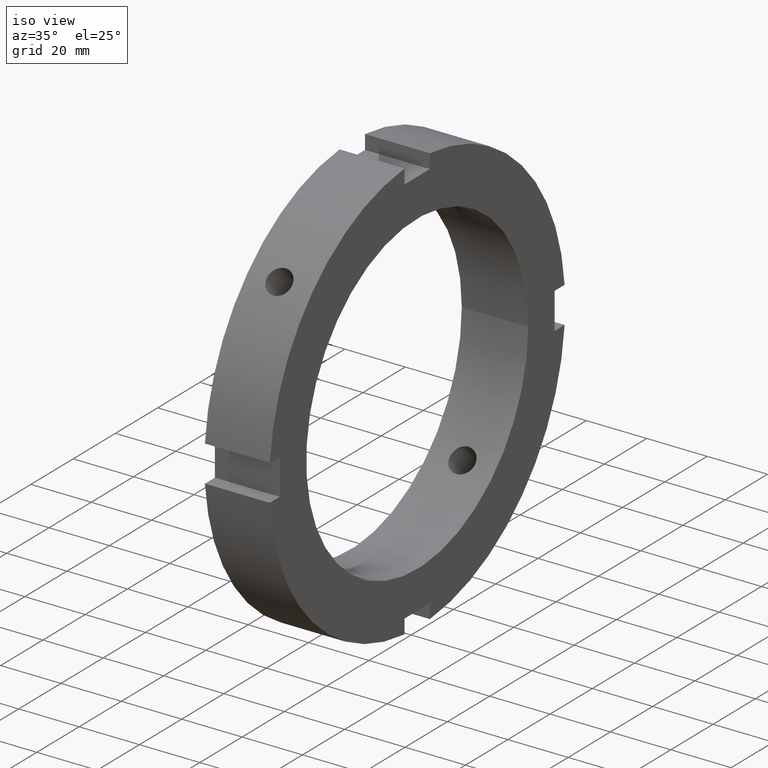
[diagram: clean part render]
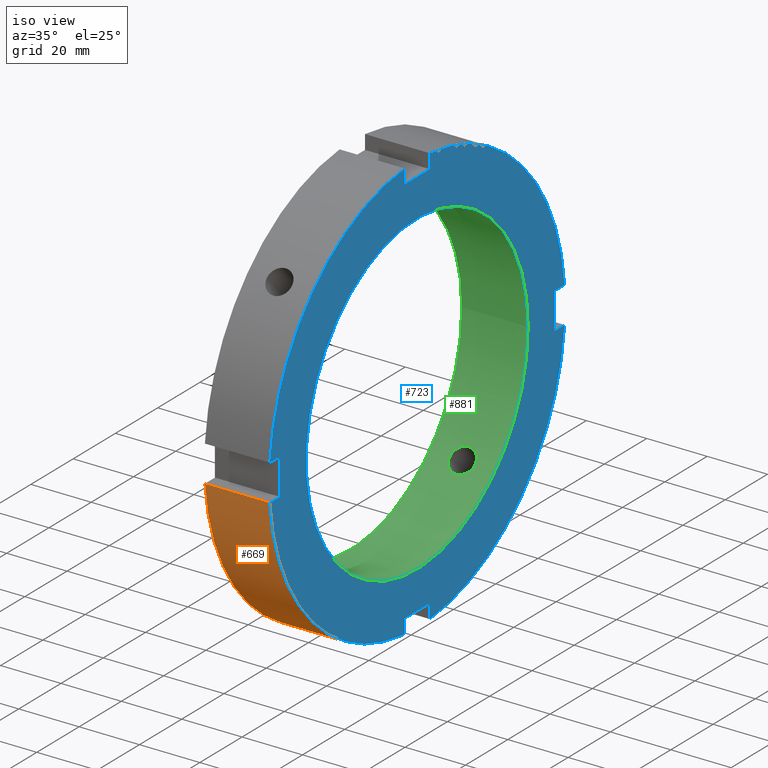
[diagram: same view with three faces highlighted in distinct colors, each labeled with its STEP entity id]
A machine part, iso view with three faces highlighted in distinct colors.
Their STEP definitions:

[orange] entity #669 — the highlighted cylindrical surface (partial cylindrical patch) has radius 70 mm, axis along (1, 0, 0).
#251=CARTESIAN_POINT('',(0.499999999999980,-6.000000000000012,-69.742383096650769));
#252=VERTEX_POINT('',#251);
#267=CARTESIAN_POINT('',(21.999999999999989,-6.000000000000012,-69.742383096650769));
#268=VERTEX_POINT('',#267);
#275=CARTESIAN_POINT('',(0.499999999999980,-6.000000000000011,-69.742383096650769));
#276=DIRECTION('',(1.0,0.0,0.0));
#277=VECTOR('',#276,21.500000000000007);
#278=LINE('',#275,#277);
#279=EDGE_CURVE('',#252,#268,#278,.T.);
#391=CARTESIAN_POINT('',(0.499999999999980,-69.742383096650769,-5.999999999999989));
#392=VERTEX_POINT('',#391);
#401=CARTESIAN_POINT('',(21.999999999999989,-69.742383096650769,-5.999999999999989));
#402=VERTEX_POINT('',#401);
#403=CARTESIAN_POINT('',(21.999999999999989,-69.742383096650769,-5.999999999999989));
#404=DIRECTION('',(-1.0,0.0,0.0));
#405=VECTOR('',#404,21.500000000000007);
#406=LINE('',#403,#405);
#407=EDGE_CURVE('',#402,#392,#406,.T.);
#646=CARTESIAN_POINT('',(11.249999999999982,0.0,0.0));
#647=DIRECTION('',(1.0,0.0,0.0));
#648=DIRECTION('',(0.0,1.0,0.0));
#649=AXIS2_PLACEMENT_3D('',#646,#647,#648);
#650=CYLINDRICAL_SURFACE('',#649,70.0);
#651=ORIENTED_EDGE('',*,*,#279,.T.);
#652=CARTESIAN_POINT('',(21.999999999999986,0.0,0.0));
#653=DIRECTION('',(1.0,0.0,0.0));
#654=DIRECTION('',(0.0,1.0,0.0));
#655=AXIS2_PLACEMENT_3D('',#652,#653,#654);
#656=CIRCLE('',#655,70.0);
#657=EDGE_CURVE('',#402,#268,#656,.T.);
#658=ORIENTED_EDGE('',*,*,#657,.F.);
#659=ORIENTED_EDGE('',*,*,#407,.T.);
#660=CARTESIAN_POINT('',(0.499999999999980,0.0,0.0));
#661=DIRECTION('',(1.0,0.0,0.0));
#662=DIRECTION('',(0.0,1.0,0.0));
#663=AXIS2_PLACEMENT_3D('',#660,#661,#662);
#664=CIRCLE('',#663,70.0);
#665=EDGE_CURVE('',#392,#252,#664,.T.);
#666=ORIENTED_EDGE('',*,*,#665,.T.);
#667=EDGE_LOOP('',(#651,#658,#659,#666));
#668=FACE_OUTER_BOUND('',#667,.T.);
#669=ADVANCED_FACE('',(#668),#650,.T.);

[blue] entity #723 — the highlighted planar face has unit normal (1, 0, 0).
#259=CARTESIAN_POINT('',(21.999999999999989,-6.000000000000010,-65.0));
#260=VERTEX_POINT('',#259);
#267=CARTESIAN_POINT('',(21.999999999999989,-6.000000000000012,-69.742383096650769));
#268=VERTEX_POINT('',#267);
#269=CARTESIAN_POINT('',(21.999999999999989,-6.000000000000016,-69.742383096650769));
#270=DIRECTION('',(0.0,0.0,1.0));
#271=VECTOR('',#270,4.742383096650769);
#272=LINE('',#269,#271);
#273=EDGE_CURVE('',#268,#260,#272,.T.);
#299=CARTESIAN_POINT('',(21.999999999999989,5.999999999999986,-69.742383096650769));
#300=VERTEX_POINT('',#299);
#307=CARTESIAN_POINT('',(21.999999999999989,5.999999999999986,-65.0));
#308=VERTEX_POINT('',#307);
#309=CARTESIAN_POINT('',(21.999999999999989,5.999999999999989,-65.0));
#310=DIRECTION('',(0.0,0.0,-1.0));
#311=VECTOR('',#310,4.742383096650769);
#312=LINE('',#309,#311);
#313=EDGE_CURVE('',#308,#300,#312,.T.);
#336=CARTESIAN_POINT('',(21.999999999999989,-6.000000000000014,-64.999999999999986));
#337=DIRECTION('',(0.0,1.0,0.0));
#338=VECTOR('',#337,12.0);
#339=LINE('',#336,#338);
#340=EDGE_CURVE('',#260,#308,#339,.T.);
#361=CARTESIAN_POINT('',(21.999999999999989,-65.0,6.000000000000006));
#362=VERTEX_POINT('',#361);
#369=CARTESIAN_POINT('',(21.999999999999989,-69.742383096650769,6.000000000000007));
#370=VERTEX_POINT('',#369);
#371=CARTESIAN_POINT('',(21.999999999999989,-69.742383096650769,6.000000000000009));
#372=DIRECTION('',(0.0,1.0,0.0));
#373=VECTOR('',#372,4.742383096650769);
#374=LINE('',#371,#373);
#375=EDGE_CURVE('',#370,#362,#374,.T.);
#401=CARTESIAN_POINT('',(21.999999999999989,-69.742383096650769,-5.999999999999989));
#402=VERTEX_POINT('',#401);
#409=CARTESIAN_POINT('',(21.999999999999989,-65.0,-5.999999999999989));
#410=VERTEX_POINT('',#409);
#411=CARTESIAN_POINT('',(21.999999999999989,-65.0,-5.999999999999989));
#412=DIRECTION('',(0.0,-1.0,0.0));
#413=VECTOR('',#412,4.742383096650769);
#414=LINE('',#411,#413);
#415=EDGE_CURVE('',#410,#402,#414,.T.);
#438=CARTESIAN_POINT('',(21.999999999999989,-65.0,6.000000000000006));
#439=DIRECTION('',(0.0,0.0,-1.0));
#440=VECTOR('',#439,11.999999999999996);
#441=LINE('',#438,#440);
#442=EDGE_CURVE('',#362,#410,#441,.T.);
#463=CARTESIAN_POINT('',(21.999999999999989,6.000000000000002,65.0));
#464=VERTEX_POINT('',#463);
#471=CARTESIAN_POINT('',(21.999999999999989,6.000000000000004,69.742383096650769));
#472=VERTEX_POINT('',#471);
#473=CARTESIAN_POINT('',(21.999999999999989,6.000000000000007,69.742383096650769));
#474=DIRECTION('',(0.0,0.0,-1.0));
#475=VECTOR('',#474,4.742383096650769);
#476=LINE('',#473,#475);
#477=EDGE_CURVE('',#472,#464,#476,.T.);
#503=CARTESIAN_POINT('',(21.999999999999989,-5.999999999999995,69.742383096650769));
#504=VERTEX_POINT('',#503);
#511=CARTESIAN_POINT('',(21.999999999999989,-5.999999999999993,65.0));
#512=VERTEX_POINT('',#511);
#513=CARTESIAN_POINT('',(21.999999999999989,-5.999999999999996,65.0));
#514=DIRECTION('',(0.0,0.0,1.0));
#515=VECTOR('',#514,4.742383096650769);
#516=LINE('',#513,#515);
#517=EDGE_CURVE('',#512,#504,#516,.T.);
#540=CARTESIAN_POINT('',(21.999999999999989,6.0,65.0));
#541=DIRECTION('',(0.0,-1.0,0.0));
#542=VECTOR('',#541,11.999999999999993);
#543=LINE('',#540,#542);
#544=EDGE_CURVE('',#464,#512,#543,.T.);
#556=CARTESIAN_POINT('',(21.999999999999989,69.742383096650769,5.999999999999998));
#557=VERTEX_POINT('',#556);
#558=CARTESIAN_POINT('',(21.999999999999986,0.0,0.0));
#559=DIRECTION('',(1.0,0.0,0.0));
#560=DIRECTION('',(0.0,1.0,0.0));
#561=AXIS2_PLACEMENT_3D('',#558,#559,#560);
#562=CIRCLE('',#561,70.0);
#563=EDGE_CURVE('',#557,#472,#562,.T.);
#589=CARTESIAN_POINT('',(21.999999999999986,0.0,0.0));
#590=DIRECTION('',(1.0,0.0,0.0));
#591=DIRECTION('',(0.0,1.0,0.0));
#592=AXIS2_PLACEMENT_3D('',#589,#590,#591);
#593=CIRCLE('',#592,70.0);
#594=EDGE_CURVE('',#504,#370,#593,.T.);
#625=CARTESIAN_POINT('',(21.999999999999989,69.742383096650769,-5.999999999999998));
#626=VERTEX_POINT('',#625);
#633=CARTESIAN_POINT('',(21.999999999999986,0.0,0.0));
#634=DIRECTION('',(1.0,0.0,0.0));
#635=DIRECTION('',(0.0,1.0,0.0));
#636=AXIS2_PLACEMENT_3D('',#633,#634,#635);
#637=CIRCLE('',#636,70.0);
#638=EDGE_CURVE('',#300,#626,#637,.T.);
#652=CARTESIAN_POINT('',(21.999999999999986,0.0,0.0));
#653=DIRECTION('',(1.0,0.0,0.0));
#654=DIRECTION('',(0.0,1.0,0.0));
#655=AXIS2_PLACEMENT_3D('',#652,#653,#654);
#656=CIRCLE('',#655,70.0);
#657=EDGE_CURVE('',#402,#268,#656,.T.);
#670=CARTESIAN_POINT('',(21.999999999999989,61.250000000000000,0.0));
#671=DIRECTION('',(1.0,0.0,0.0));
#672=DIRECTION('',(0.0,0.0,-1.0));
#673=AXIS2_PLACEMENT_3D('',#670,#671,#672);
#674=PLANE('',#673);
#675=ORIENTED_EDGE('',*,*,#273,.T.);
#676=ORIENTED_EDGE('',*,*,#340,.T.);
#677=ORIENTED_EDGE('',*,*,#313,.T.);
#678=ORIENTED_EDGE('',*,*,#638,.T.);
#679=CARTESIAN_POINT('',(21.999999999999989,65.0,-5.999999999999997));
#680=VERTEX_POINT('',#679);
#681=CARTESIAN_POINT('',(21.999999999999989,69.742383096650769,-5.999999999999998));
#682=DIRECTION('',(0.0,-1.0,0.0));
#683=VECTOR('',#682,4.742383096650769);
#684=LINE('',#681,#683);
#685=EDGE_CURVE('',#626,#680,#684,.T.);
#686=ORIENTED_EDGE('',*,*,#685,.T.);
#687=CARTESIAN_POINT('',(21.999999999999989,65.0,5.999999999999997));
#688=VERTEX_POINT('',#687);
#689=CARTESIAN_POINT('',(21.999999999999989,65.0,-5.999999999999998));
#690=DIRECTION('',(0.0,0.0,1.0));
#691=VECTOR('',#690,11.999999999999996);
#692=LINE('',#689,#691);
#693=EDGE_CURVE('',#680,#688,#692,.T.);
#694=ORIENTED_EDGE('',*,*,#693,.T.);
#695=CARTESIAN_POINT('',(21.999999999999989,65.0,5.999999999999997));
#696=DIRECTION('',(0.0,1.0,0.0));
#697=VECTOR('',#696,4.742383096650769);
#698=LINE('',#695,#697);
#699=EDGE_CURVE('',#688,#557,#698,.T.);
#700=ORIENTED_EDGE('',*,*,#699,.T.);
#701=ORIENTED_EDGE('',*,*,#563,.T.);
#702=ORIENTED_EDGE('',*,*,#477,.T.);
#703=ORIENTED_EDGE('',*,*,#544,.T.);
#704=ORIENTED_EDGE('',*,*,#517,.T.);
#705=ORIENTED_EDGE('',*,*,#594,.T.);
#706=ORIENTED_EDGE('',*,*,#375,.T.);
#707=ORIENTED_EDGE('',*,*,#442,.T.);
#708=ORIENTED_EDGE('',*,*,#415,.T.);
#709=ORIENTED_EDGE('',*,*,#657,.T.);
#710=EDGE_LOOP('',(#675,#676,#677,#678,#686,#694,#700,#701,#702,#703,#704,#705,#706,#707,#708,#709));
#711=FACE_OUTER_BOUND('',#710,.T.);
#712=CARTESIAN_POINT('',(21.999999999999993,52.500000000000000,0.0));
#713=VERTEX_POINT('',#712);
#714=CARTESIAN_POINT('',(21.999999999999993,0.0,0.0));
#715=DIRECTION('',(1.0,0.0,0.0));
#716=DIRECTION('',(0.0,1.0,0.0));
#717=AXIS2_PLACEMENT_3D('',#714,#715,#716);
#718=CIRCLE('',#717,52.500000000000000);
#719=EDGE_CURVE('',#713,#713,#718,.T.);
#720=ORIENTED_EDGE('',*,*,#719,.F.);
#721=EDGE_LOOP('',(#720));
#722=FACE_BOUND('',#721,.T.);
#723=ADVANCED_FACE('',(#711,#722),#674,.T.);

[green] entity #881 — the highlighted cylindrical surface (bore or boss wall) has radius 52.5 mm, axis along (1, 0, 0).
#114=CARTESIAN_POINT('',(10.999999999999993,-39.966164617803621,34.043438218585116));
#115=VERTEX_POINT('',#114);
#116=CARTESIAN_POINT('',(10.999999999999989,-39.966164617803614,34.043438218585123));
#117=CARTESIAN_POINT('',(11.526094850379172,-39.966164617803614,34.043438218585123));
#118=CARTESIAN_POINT('',(12.087103325102158,-39.897974141368628,34.124003159490520));
#119=CARTESIAN_POINT('',(13.118873608724876,-39.618043930623010,34.448607042941624));
#120=CARTESIAN_POINT('',(13.589654459036552,-39.405989177327676,34.692313635157163));
#121=CARTESIAN_POINT('',(14.333071429596130,-38.910012997977795,35.247687818070943));
#122=CARTESIAN_POINT('',(14.655343762955317,-38.592924427846476,35.596384230947621));
#123=CARTESIAN_POINT('',(15.082814224526459,-37.885638638940378,36.348243026683690));
#124=CARTESIAN_POINT('',(15.187999999999992,-37.495110737551073,36.751101287036420));
#125=CARTESIAN_POINT('',(15.187999999999992,-36.751101287036377,37.495110737551101));
#126=CARTESIAN_POINT('',(15.082814224526464,-36.348243026683662,37.885638638940414));
#127=CARTESIAN_POINT('',(14.655343762955324,-35.596384230947599,38.592924427846505));
#128=CARTESIAN_POINT('',(14.333071429596128,-35.247687818070915,38.910012997977816));
#129=CARTESIAN_POINT('',(13.589654459036558,-34.692313635157134,39.405989177327704));
#130=CARTESIAN_POINT('',(13.118873608724881,-34.448607042941589,39.618043930623031));
#131=CARTESIAN_POINT('',(12.087103325102163,-34.124003159490485,39.897974141368657));
#132=CARTESIAN_POINT('',(11.526094850379174,-34.043438218585095,39.966164617803635));
#133=CARTESIAN_POINT('',(10.473905149620810,-34.043438218585095,39.966164617803635));
#134=CARTESIAN_POINT('',(9.912896674897823,-34.124003159490485,39.897974141368657));
#135=CARTESIAN_POINT('',(8.881126391275103,-34.448607042941589,39.618043930623031));
#136=CARTESIAN_POINT('',(8.410345540963428,-34.692313635157134,39.405989177327704));
#137=CARTESIAN_POINT('',(7.666928570403860,-35.247687818070915,38.910012997977816));
#138=CARTESIAN_POINT('',(7.344656237044664,-35.596384230947599,38.592924427846505));
#139=CARTESIAN_POINT('',(6.917185775473524,-36.348243026683662,37.885638638940414));
#140=CARTESIAN_POINT('',(6.811999999999991,-36.751101287036377,37.495110737551101));
#141=CARTESIAN_POINT('',(6.811999999999991,-37.495110737551073,36.751101287036420));
#142=CARTESIAN_POINT('',(6.917185775473524,-37.885638638940378,36.348243026683690));
#143=CARTESIAN_POINT('',(7.344656237044665,-38.592924427846476,35.596384230947621));
#144=CARTESIAN_POINT('',(7.666928570403853,-38.910012997977795,35.247687818070943));
#145=CARTESIAN_POINT('',(8.410345540963427,-39.405989177327676,34.692313635157163));
#146=CARTESIAN_POINT('',(8.881126391275107,-39.618043930623003,34.448607042941624));
#147=CARTESIAN_POINT('',(9.912896674897825,-39.897974141368621,34.124003159490520));
#148=CARTESIAN_POINT('',(10.473905149620810,-39.966164617803614,34.043438218585123));
#149=CARTESIAN_POINT('',(10.999999999999993,-39.966164617803614,34.043438218585123));
#150=B_SPLINE_CURVE_WITH_KNOTS('',3,(#116,#117,#118,#119,#120,#121,#122,#123,#124,#125,#126,#127,#128,#129,#130,#131,#132,#133,#134,#135,#136,#137,#138,#139,#140,#141,#142,#143,#144,#145,#146,#147,#148,#149),.UNSPECIFIED.,.T.,.U.,(4,2,2,2,2,2,2,2,2,2,2,2,2,2,2,2,4),(0.0,0.157828455113754,0.315656910227508,0.473485148545253,0.631313386862997,0.789141625180740,0.946969863498483,1.104798318612238,1.262626773725992,1.420455228839747,1.578283683953501,1.736111922271244,1.893940160588988,2.051768398906732,2.209596637224476,2.367425092338230,2.525253547451985),.UNSPECIFIED.);
#151=EDGE_CURVE('',#115,#115,#150,.T.);
#202=CARTESIAN_POINT('',(10.999999999999993,34.043438218585109,-39.966164617803628));
#203=VERTEX_POINT('',#202);
#204=CARTESIAN_POINT('',(10.999999999999993,34.043438218585102,-39.966164617803628));
#205=CARTESIAN_POINT('',(10.473905149620810,34.043438218585102,-39.966164617803628));
#206=CARTESIAN_POINT('',(9.912896674897825,34.124003159490506,-39.897974141368650));
#207=CARTESIAN_POINT('',(8.881126391275103,34.448607042941603,-39.618043930623024));
#208=CARTESIAN_POINT('',(8.410345540963430,34.692313635157142,-39.405989177327676));
#209=CARTESIAN_POINT('',(7.666928570403857,35.247687818070929,-38.910012997977788));
#210=CARTESIAN_POINT('',(7.344656237044660,35.596384230947614,-38.592924427846476));
#211=CARTESIAN_POINT('',(6.917185775473520,36.348243026683683,-37.885638638940378));
#212=CARTESIAN_POINT('',(6.811999999999989,36.751101287036406,-37.495110737551080));
#213=CARTESIAN_POINT('',(6.811999999999994,37.495110737551094,-36.751101287036391));
#214=CARTESIAN_POINT('',(6.917185775473524,37.885638638940392,-36.348243026683676));
#215=CARTESIAN_POINT('',(7.344656237044664,38.592924427846484,-35.596384230947614));
#216=CARTESIAN_POINT('',(7.666928570403858,38.910012997977802,-35.247687818070929));
#217=CARTESIAN_POINT('',(8.410345540963428,39.405989177327683,-34.692313635157149));
#218=CARTESIAN_POINT('',(8.881126391275103,39.618043930623017,-34.448607042941603));
#219=CARTESIAN_POINT('',(9.912896674897828,39.897974141368643,-34.124003159490506));
#220=CARTESIAN_POINT('',(10.473905149620810,39.966164617803635,-34.043438218585109));
#221=CARTESIAN_POINT('',(11.526094850379174,39.966164617803635,-34.043438218585109));
#222=CARTESIAN_POINT('',(12.087103325102158,39.897974141368650,-34.124003159490506));
#223=CARTESIAN_POINT('',(13.118873608724883,39.618043930623017,-34.448607042941603));
#224=CARTESIAN_POINT('',(13.589654459036558,39.405989177327683,-34.692313635157149));
#225=CARTESIAN_POINT('',(14.333071429596128,38.910012997977802,-35.247687818070929));
#226=CARTESIAN_POINT('',(14.655343762955317,38.592924427846491,-35.596384230947614));
#227=CARTESIAN_POINT('',(15.082814224526459,37.885638638940392,-36.348243026683676));
#228=CARTESIAN_POINT('',(15.187999999999992,37.495110737551094,-36.751101287036391));
#229=CARTESIAN_POINT('',(15.187999999999992,36.751101287036406,-37.495110737551080));
#230=CARTESIAN_POINT('',(15.082814224526459,36.348243026683683,-37.885638638940378));
#231=CARTESIAN_POINT('',(14.655343762955322,35.596384230947614,-38.592924427846484));
#232=CARTESIAN_POINT('',(14.333071429596128,35.247687818070929,-38.910012997977788));
#233=CARTESIAN_POINT('',(13.589654459036552,34.692313635157142,-39.405989177327676));
#234=CARTESIAN_POINT('',(13.118873608724877,34.448607042941603,-39.618043930623024));
#235=CARTESIAN_POINT('',(12.087103325102158,34.124003159490506,-39.897974141368643));
#236=CARTESIAN_POINT('',(11.526094850379174,34.043438218585102,-39.966164617803628));
#237=CARTESIAN_POINT('',(10.999999999999993,34.043438218585102,-39.966164617803628));
#238=B_SPLINE_CURVE_WITH_KNOTS('',3,(#204,#205,#206,#207,#208,#209,#210,#211,#212,#213,#214,#215,#216,#217,#218,#219,#220,#221,#222,#223,#224,#225,#226,#227,#228,#229,#230,#231,#232,#233,#234,#235,#236,#237),.UNSPECIFIED.,.T.,.U.,(4,2,2,2,2,2,2,2,2,2,2,2,2,2,2,2,4),(0.0,0.157828455113755,0.315656910227510,0.473485148545253,0.631313386862997,0.789141625180740,0.946969863498483,1.104798318612238,1.262626773725993,1.420455228839747,1.578283683953502,1.736111922271245,1.893940160588988,2.051768398906732,2.209596637224475,2.367425092338230,2.525253547451985),.UNSPECIFIED.);
#239=EDGE_CURVE('',#203,#203,#238,.T.);
#712=CARTESIAN_POINT('',(21.999999999999993,52.500000000000000,0.0));
#713=VERTEX_POINT('',#712);
#714=CARTESIAN_POINT('',(21.999999999999993,0.0,0.0));
#715=DIRECTION('',(1.0,0.0,0.0));
#716=DIRECTION('',(0.0,1.0,0.0));
#717=AXIS2_PLACEMENT_3D('',#714,#715,#716);
#718=CIRCLE('',#717,52.500000000000000);
#719=EDGE_CURVE('',#713,#713,#718,.T.);
#805=CARTESIAN_POINT('',(-1.517934E-014,52.500000000000000,0.0));
#806=VERTEX_POINT('',#805);
#807=CARTESIAN_POINT('',(-1.517883E-014,0.0,0.0));
#808=DIRECTION('',(1.0,0.0,0.0));
#809=DIRECTION('',(0.0,1.0,0.0));
#810=AXIS2_PLACEMENT_3D('',#807,#808,#809);
#811=CIRCLE('',#810,52.500000000000000);
#812=EDGE_CURVE('',#806,#806,#811,.T.);
#864=CARTESIAN_POINT('',(10.999999999999989,0.0,0.0));
#865=DIRECTION('',(1.0,0.0,0.0));
#866=DIRECTION('',(0.0,1.0,0.0));
#867=AXIS2_PLACEMENT_3D('',#864,#865,#866);
#868=CYLINDRICAL_SURFACE('',#867,52.500000000000000);
#869=ORIENTED_EDGE('',*,*,#812,.F.);
#870=EDGE_LOOP('',(#869));
#871=FACE_OUTER_BOUND('',#870,.T.);
#872=ORIENTED_EDGE('',*,*,#151,.T.);
#873=EDGE_LOOP('',(#872));
#874=FACE_BOUND('',#873,.T.);
#875=ORIENTED_EDGE('',*,*,#239,.T.);
#876=EDGE_LOOP('',(#875));
#877=FACE_BOUND('',#876,.T.);
#878=ORIENTED_EDGE('',*,*,#719,.T.);
#879=EDGE_LOOP('',(#878));
#880=FACE_BOUND('',#879,.T.);
#881=ADVANCED_FACE('',(#871,#874,#877,#880),#868,.F.);